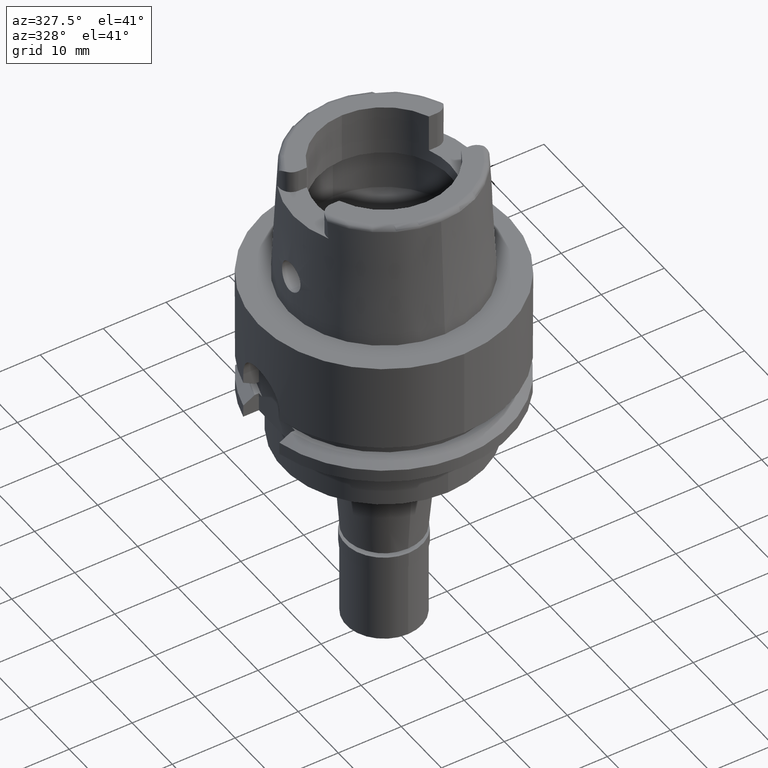
[diagram: clean part render]
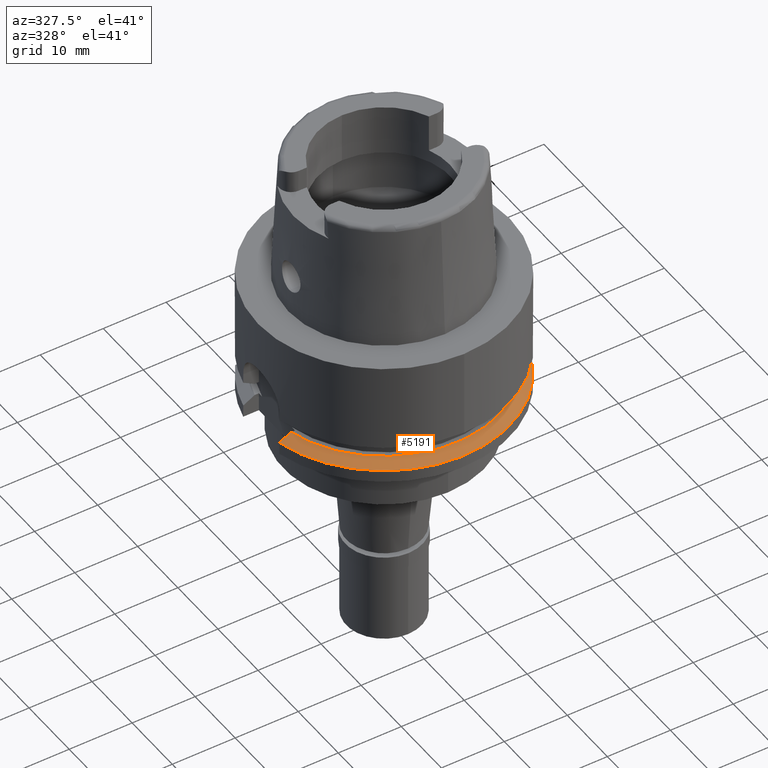
[diagram: same view with one face highlighted and labeled with its STEP entity id]
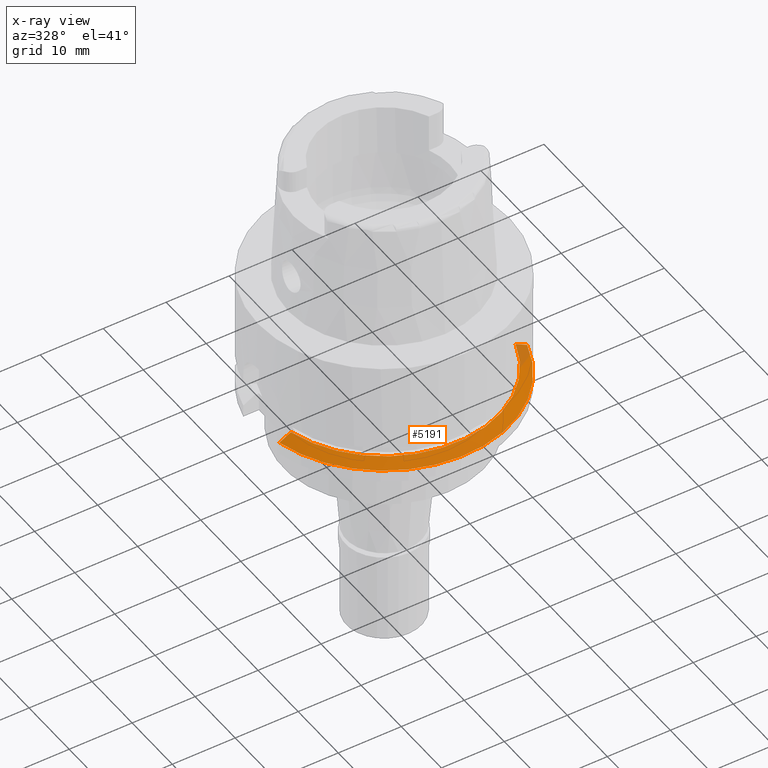
[diagram: x-ray of the same camera — body ghosted, the highlighted face saturated]
A machine part, auxiliary view. The second image highlights one B-rep face of the part: STEP entity #5191.
The next image is the same camera in x-ray: the body ghosted, the highlighted face saturated — about 4% of this face is hidden behind the body in this view.
In plain terms, the highlighted conical surface has half-angle 60 deg.
Its self-contained STEP definition (entity closure, byte-faithful):
#185 = EDGE_CURVE ( 'NONE', #1720, #4065, #4867, .T. ) ;
#188 = CARTESIAN_POINT ( 'NONE',  ( -19.48717526991000071, -4.499999999998999911, -18.02072594216000212 ) ) ;
#204 = CARTESIAN_POINT ( 'NONE',  ( 19.22888452303000051, -5.499999999998999911, -18.02072594216000212 ) ) ;
#226 = CARTESIAN_POINT ( 'NONE',  ( -18.88128293141999947, -4.500000000000000000, -17.68007248934999964 ) ) ;
#263 = CONICAL_SURFACE ( 'NONE', #3504, 19.11602540378000015, 1.047197551196400456 ) ;
#394 = CIRCLE ( 'NONE', #3462, 18.23205080757000118 ) ;
#671 = CARTESIAN_POINT ( 'NONE',  ( -19.48717526991000071, -4.499999999998999911, -18.02072594216000212 ) ) ;
#1028 = CARTESIAN_POINT ( 'NONE',  ( -17.66798451012000370, -4.500000000000000000, -17.00000000000000000 ) ) ;
#1196 = CIRCLE ( 'NONE', #3382, 20.00000000000000355 ) ;
#1261 = DIRECTION ( 'NONE',  ( 0.0000000000000000000, -1.000000000000000000, 0.0000000000000000000 ) ) ;
#1275 = EDGE_CURVE ( 'NONE', #4987, #4065, #394, .T. ) ;
#1291 = CARTESIAN_POINT ( 'NONE',  ( 0.0000000000000000000, 1.010206699502999904E-14, -17.00000000000000000 ) ) ;
#1720 = VERTEX_POINT ( 'NONE', #188 ) ;
#1763 = CARTESIAN_POINT ( 'NONE',  ( 0.0000000000000000000, 1.010206699502999904E-14, -17.51036297107999928 ) ) ;
#1869 = DIRECTION ( 'NONE',  ( 0.9614442261514726251, -0.2749999999999924727, 0.0000000000000000000 ) ) ;
#1870 = CARTESIAN_POINT ( 'NONE',  ( -17.87034388033999832, -4.500000000000000000, -17.11321766119999666 ) ) ;
#1898 = ORIENTED_EDGE ( 'NONE', *, *, #2738, .F. ) ;
#2102 = CARTESIAN_POINT ( 'NONE',  ( -17.66798451012000370, -4.500000000000000000, -17.00000000000000000 ) ) ;
#2505 = VERTEX_POINT ( 'NONE', #3785 ) ;
#2738 = EDGE_CURVE ( 'NONE', #4987, #2505, #2820, .T. ) ;
#2742 = EDGE_CURVE ( 'NONE', #2505, #1720, #1196, .T. ) ;
#2820 = B_SPLINE_CURVE_WITH_KNOTS ( 'NONE', 3,
 ( #3574, #4035, #3175, #3957, #5232, #204 ),
 .UNSPECIFIED., .F., .F.,
 ( 4, 1, 1, 4 ),
 ( 0.0000000000000000000, 0.3333333333333000081, 0.6666666666667000474, 1.000000000000000000 ),
 .UNSPECIFIED. ) ;
#3175 = CARTESIAN_POINT ( 'NONE',  ( 17.98549871418000023, -5.499999995020999677, -17.33216676109999810 ) ) ;
#3200 = CARTESIAN_POINT ( 'NONE',  ( -19.28525784596000037, -4.499999999998999911, -17.90713804354999894 ) ) ;
#3367 = CARTESIAN_POINT ( 'NONE',  ( 17.38268324078999783, -5.500000000000000000, -17.00000000000000000 ) ) ;
#3382 = AXIS2_PLACEMENT_3D ( 'NONE', #3930, #3619, #1869 ) ;
#3462 = AXIS2_PLACEMENT_3D ( 'NONE', #1291, #4552, #1261 ) ;
#3504 = AXIS2_PLACEMENT_3D ( 'NONE', #1763, #4676, #4280 ) ;
#3574 = CARTESIAN_POINT ( 'NONE',  ( 17.38268324078999783, -5.500000000000000000, -17.00000000000000000 ) ) ;
#3619 = DIRECTION ( 'NONE',  ( 0.0000000000000000000, 0.0000000000000000000, -1.000000000000000000 ) ) ;
#3785 = CARTESIAN_POINT ( 'NONE',  ( 19.22888452303000051, -5.499999999998999911, -18.02072594216000212 ) ) ;
#3817 = ORIENTED_EDGE ( 'NONE', *, *, #1275, .T. ) ;
#3930 = CARTESIAN_POINT ( 'NONE',  ( 0.0000000000000000000, 1.010206699502999904E-14, -18.02072594216000212 ) ) ;
#3957 = CARTESIAN_POINT ( 'NONE',  ( 18.60089329194000030, -5.499999794652000062, -17.67242211953999842 ) ) ;
#4035 = CARTESIAN_POINT ( 'NONE',  ( 17.58242601983999975, -5.500000148516999587, -17.10995028231999981 ) ) ;
#4065 = VERTEX_POINT ( 'NONE', #2102 ) ;
#4110 = ORIENTED_EDGE ( 'NONE', *, *, #2742, .F. ) ;
#4141 = EDGE_LOOP ( 'NONE', ( #4764, #4110, #1898, #3817 ) ) ;
#4280 = DIRECTION ( 'NONE',  ( 0.0000000000000000000, -1.000000000000000000, 0.0000000000000000000 ) ) ;
#4402 = CARTESIAN_POINT ( 'NONE',  ( -18.27489697164999782, -4.500000000000000000, -17.33980939873999816 ) ) ;
#4552 = DIRECTION ( 'NONE',  ( 0.0000000000000000000, 0.0000000000000000000, -1.000000000000000000 ) ) ;
#4646 = FACE_OUTER_BOUND ( 'NONE', #4141, .T. ) ;
#4676 = DIRECTION ( 'NONE',  ( 0.0000000000000000000, 0.0000000000000000000, -1.000000000000000000 ) ) ;
#4764 = ORIENTED_EDGE ( 'NONE', *, *, #185, .F. ) ;
#4867 = B_SPLINE_CURVE_WITH_KNOTS ( 'NONE', 3,
 ( #671, #3200, #226, #4402, #1870, #1028 ),
 .UNSPECIFIED., .F., .F.,
 ( 4, 1, 1, 4 ),
 ( 0.0000000000000000000, 0.3333333333333000081, 0.6666666666667000474, 1.000000000000000000 ),
 .UNSPECIFIED. ) ;
#4987 = VERTEX_POINT ( 'NONE', #3367 ) ;
#5191 = ADVANCED_FACE ( 'NONE', ( #4646 ), #263, .T. ) ;
#5232 = CARTESIAN_POINT ( 'NONE',  ( 19.01834940544999952, -5.500000482465000395, -17.90386410838999964 ) ) ;